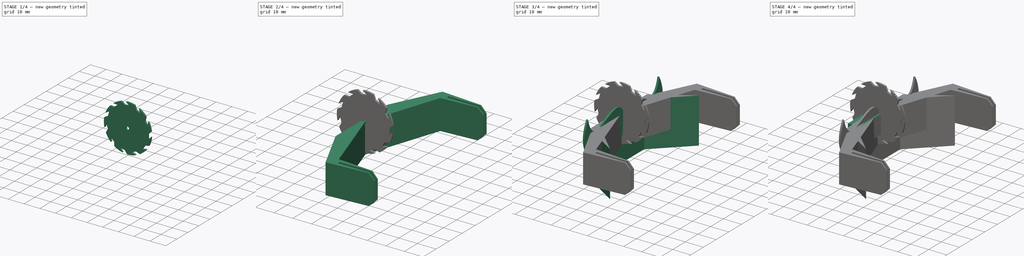
[diagram: build sequence overview — one tinted view per stage of 4, left to right]
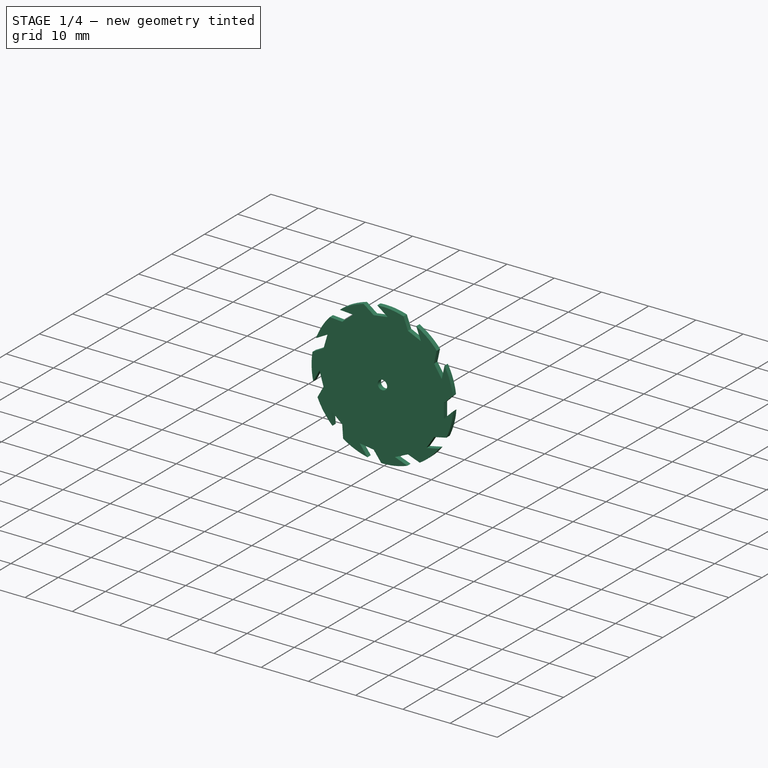
[diagram: stage 1 of 4 — iso view after this stage's code; geometry added in this stage tinted green]
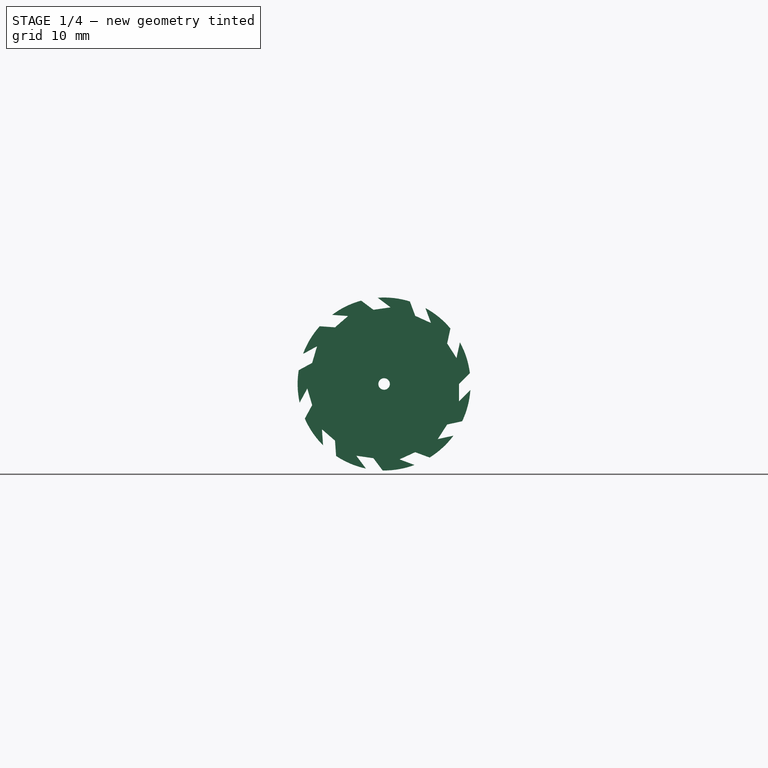
[diagram: stage 1 of 4 — front view after this stage's code; geometry added in this stage tinted green]
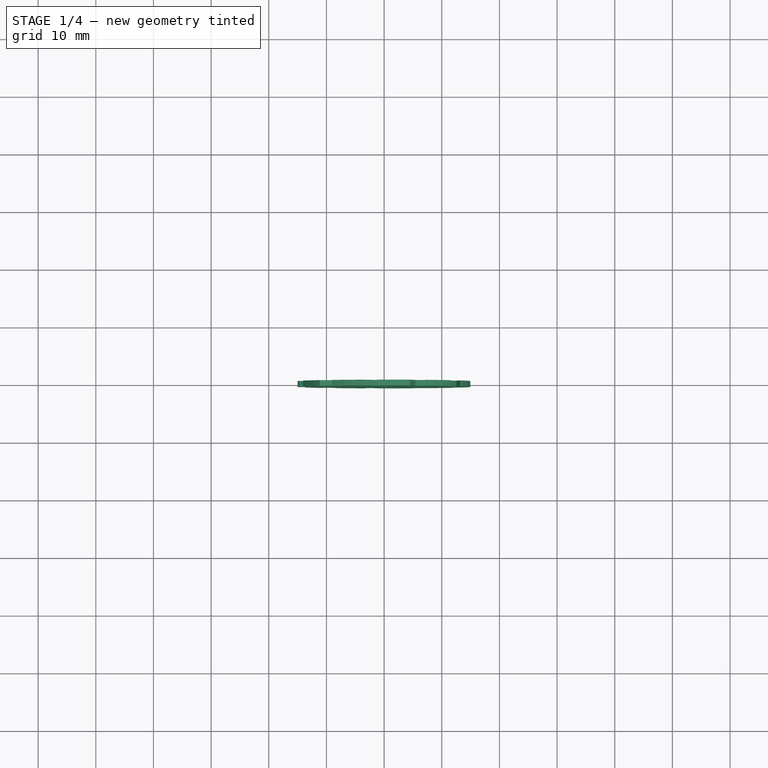
[diagram: stage 1 of 4 — top view after this stage's code; geometry added in this stage tinted green]
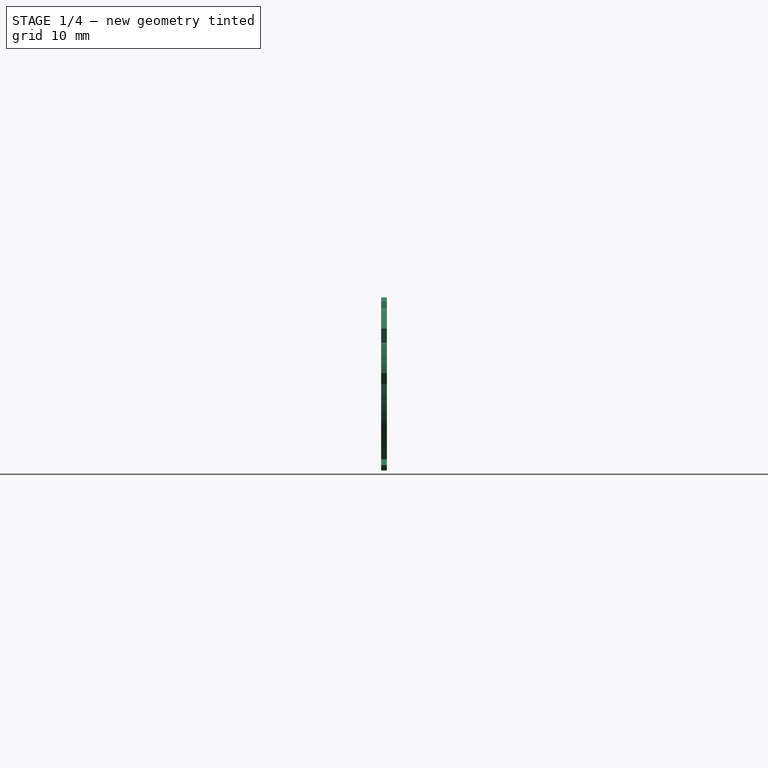
[diagram: stage 1 of 4 — right view after this stage's code; geometry added in this stage tinted green]
FCSTD DOCUMENT  (FreeCAD 0.17R13541 (Git))
Label: front_accessory_template
License: All rights reserved
LicenseURL: http://en.wikipedia.org/wiki/All_rights_reserved
objects: Sketcher::SketchObject×10, PartDesign::Pad×7, PartDesign::Body×5, PartDesign::Plane×4, PartDesign::Pocket×2, PartDesign::Mirrored×1, PartDesign::Line×1, PartDesign::Revolution×1, PartDesign::PolarPattern×1
note: 42 computed .brp shape members not serialized (recipe doc carries the construction recipe); baked Part::Feature solids carry a one-line shape summary decoded from their .brp

FEATURE [PartDesign::Body] Body003  label="plower2"
  Group = -> [Sketch005,Pad005,DatumPlane002,Sketch006,Pocket,DatumLine,DatumPlane003,Sketch007,Revolution]
  Origin = -> Origin003
  Tip = -> Revolution
FEATURE [Sketcher::SketchObject] Sketch008
  MapMode = 5
  Placement = pos=(0,0,0) rot=(1,0,0;1.5708rad)
  Support = -> [XZ_Plane004]
  sketch-geometry (2):
    g0: Circle CenterX=0 CenterY=0 CenterZ=0 NormalX=0 NormalY=0 NormalZ=1 AngleXU=0 Radius=15
    g1: Circle CenterX=0 CenterY=0 CenterZ=0 NormalX=0 NormalY=0 NormalZ=1 AngleXU=0 Radius=1
  constraints (4):
    c: Coincident(g0,g-1)
    c: Radius(g0) = 15
    c: Coincident(g1,g-1)
    c: Radius(g1) = 1
FEATURE [PartDesign::Pad] Pad006
  Length = 1
  Length2 = 100
  Midplane = true
  Placement = pos=(0,0,0) rot=(1,0,0;1.5708rad)
  Profile = -> Sketch008
  Type = 0
FEATURE [Sketcher::SketchObject] Sketch009
  MapMode = 5
  Placement = pos=(0,0.5,0) rot=(-1,0,0;1.5708rad)
  Support = -> [Pad006]
  sketch-geometry (4):
    g0: LineSegment StartX=13 StartY=3 StartZ=0 EndX=16 EndY=0 EndZ=0
    g1: LineSegment StartX=16 StartY=0 StartZ=0 EndX=16 EndY=-3 EndZ=0
    g2: LineSegment StartX=16 StartY=-3 StartZ=0 EndX=13 EndY=0 EndZ=0
    g3: LineSegment StartX=13 StartY=0 StartZ=0 EndX=13 EndY=3 EndZ=0
  constraints (12):
    c: Coincident(g0,g1)
    c: Vertical(g1)
    c: Coincident(g1,g2)
    c: PointOnObject(g2,g-1)
    c: Coincident(g2,g3)
    c: Vertical(g3)
    c: Coincident(g0,g3)
    c: Equal(g3,g1)
    c: DistanceY(g3,g3) = 3
    c: DistanceX(g-1,g2) = 13
    c: DistanceX(g2,g1) = 3
    c: PointOnObject(g0,g-1)
FEATURE [PartDesign::Pocket] Pocket001
  BaseFeature = -> Pad006
  Length = 5
  Length2 = 100
  Placement = pos=(0,0,0) rot=(1,0,0;1.5708rad)
  Profile = -> Sketch009
  Type = 0
FEATURE [PartDesign::PolarPattern] PolarPattern
  Angle = 360
  Axis = -> Sketch009 [N_Axis]
  BaseFeature = -> Pocket001
  Occurrences = 11
  Originals = -> [Pocket001]
  Placement = pos=(0,0,0) rot=(1,0,0;1.5708rad)
FEATURE [PartDesign::Body] Body004  label="plower2_blade"
  Group = -> [Sketch008,Pad006,Sketch009,Pocket001,PolarPattern]
  Origin = -> Origin004
  Placement = pos=(30,-41.75,-8) rot=(0,0,1;0rad)
  Tip = -> PolarPattern
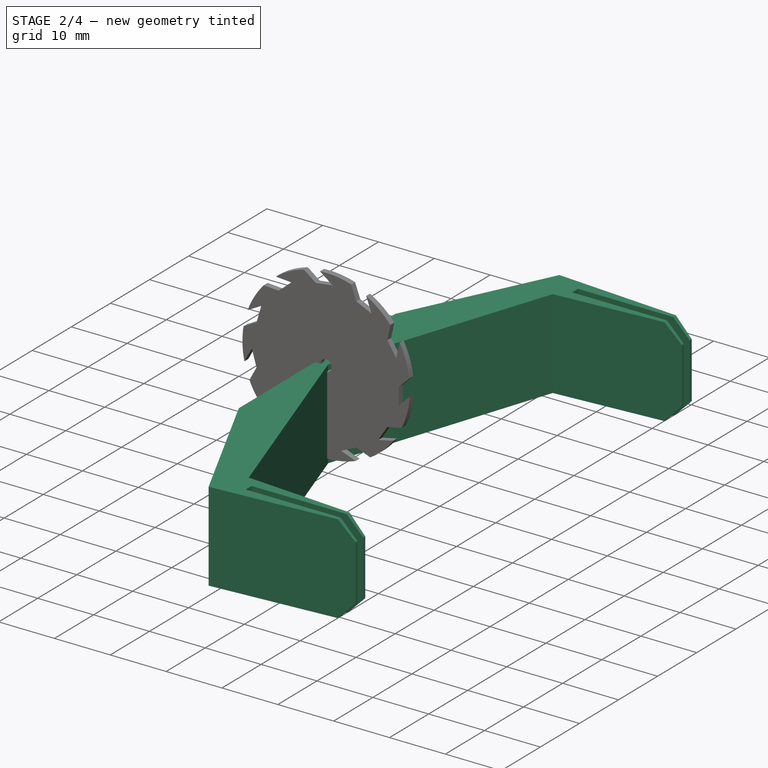
[diagram: stage 2 of 4 — iso view after this stage's code; geometry added in this stage tinted green]
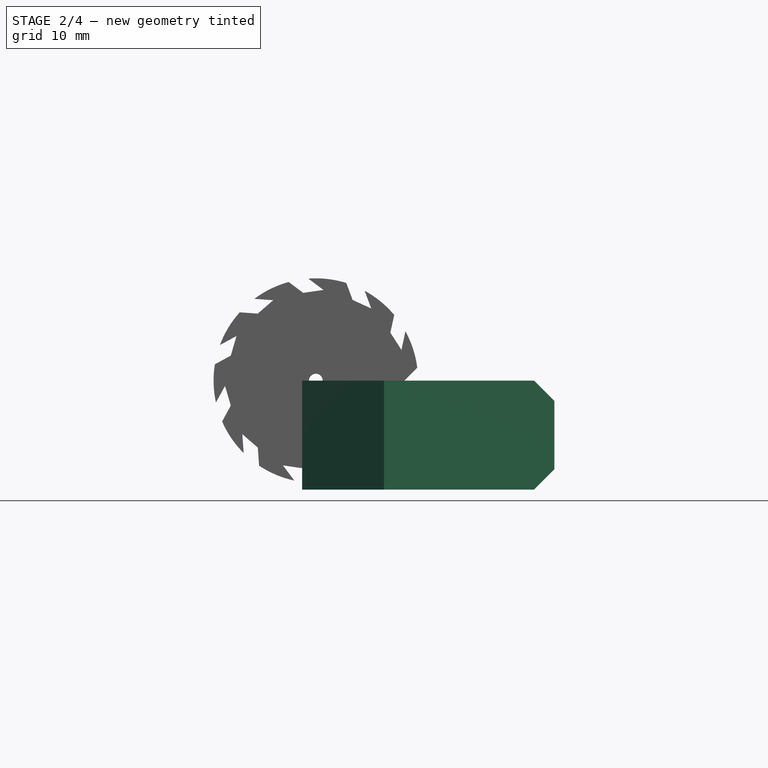
[diagram: stage 2 of 4 — front view after this stage's code; geometry added in this stage tinted green]
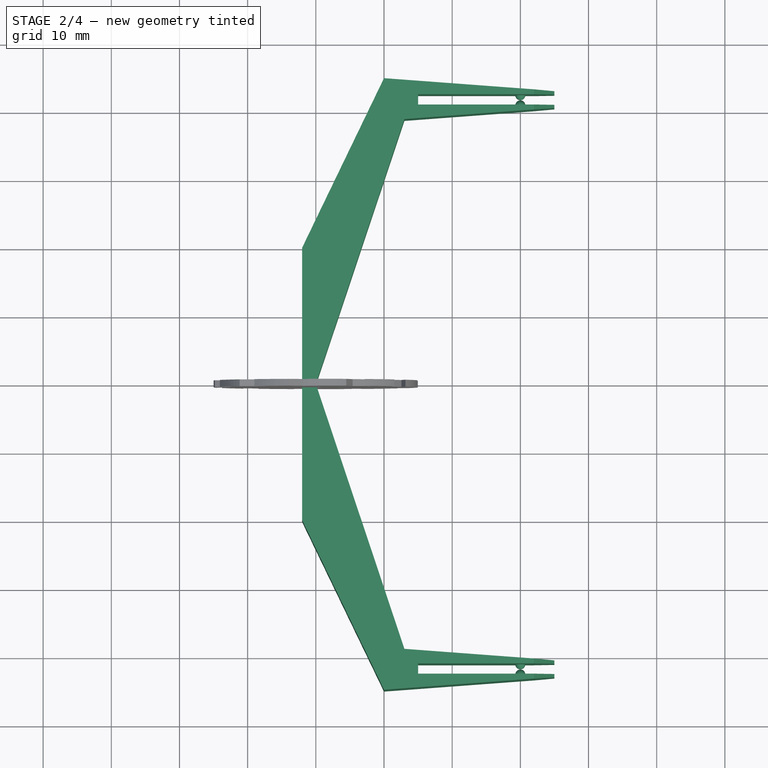
[diagram: stage 2 of 4 — top view after this stage's code; geometry added in this stage tinted green]
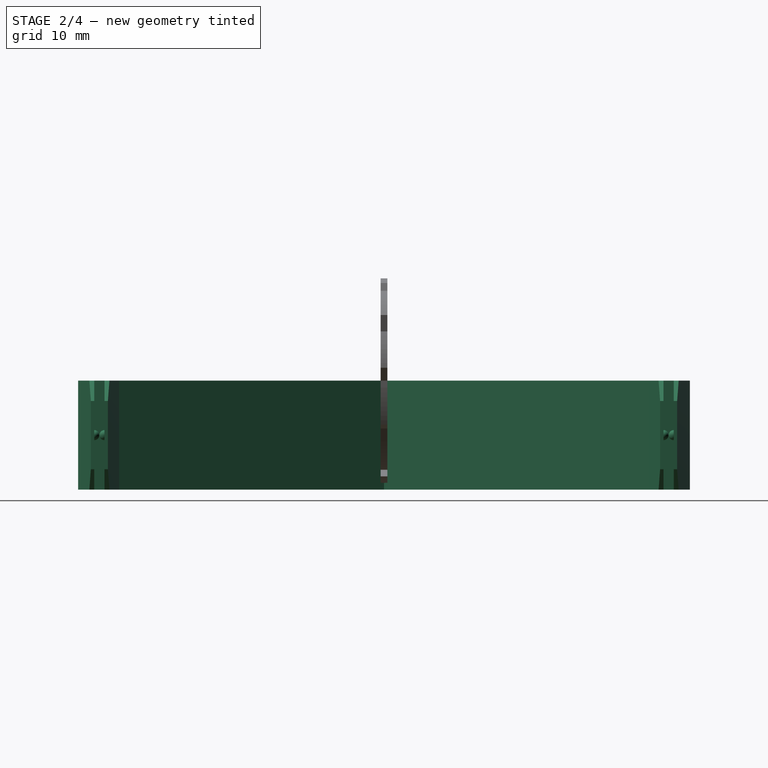
[diagram: stage 2 of 4 — right view after this stage's code; geometry added in this stage tinted green]
FEATURE [PartDesign::Body] Body002  label="plower"
  Group = -> [Sketch004,Pad004]
  Origin = -> Origin002
  Tip = -> Pad004
FEATURE [Sketcher::SketchObject] Sketch005
  MapMode = 5
  Support = -> [XY_Plane003]
  sketch-geometry (22):
    g0: LineSegment StartX=-2 StartY=20 StartZ=0 EndX=-2 EndY=-20 EndZ=0
    g1: LineSegment StartX=-2 StartY=-20 StartZ=0 EndX=10 EndY=-44.8617 EndZ=0
    g2: LineSegment StartX=10 StartY=-44.8617 StartZ=0 EndX=35 EndY=-43 EndZ=0
    g3: LineSegment StartX=35 StartY=-43 StartZ=0 EndX=35 EndY=-42.5 EndZ=0
    g4: LineSegment StartX=35 StartY=-42.5 StartZ=0 EndX=15 EndY=-42.5 EndZ=0
    g5: LineSegment StartX=15 StartY=-42.5 StartZ=0 EndX=15 EndY=-41 EndZ=0
    g6: LineSegment StartX=15 StartY=-41 StartZ=0 EndX=35 EndY=-41 EndZ=0
    g7: LineSegment StartX=35 StartY=-41 StartZ=0 EndX=35 EndY=-40.5 EndZ=0
    g8: LineSegment StartX=35 StartY=-40.5 StartZ=0 EndX=13 EndY=-38.8617 EndZ=0
    g9: LineSegment StartX=13 StartY=-38.8617 StartZ=0 EndX=0 EndY=0 EndZ=0
    g10: LineSegment StartX=0 StartY=0 StartZ=0 EndX=13 EndY=38.8617 EndZ=0
    g11: LineSegment StartX=13 StartY=38.8617 StartZ=0 EndX=35 EndY=40.5 EndZ=0
    g12: LineSegment StartX=35 StartY=40.5 StartZ=0 EndX=35 EndY=41 EndZ=0
    g13: LineSegment StartX=35 StartY=41 StartZ=0 EndX=15 EndY=41 EndZ=0
    g14: LineSegment StartX=15 StartY=41 StartZ=0 EndX=15 EndY=42.5 EndZ=0
    g15: LineSegment StartX=15 StartY=42.5 StartZ=0 EndX=35 EndY=42.5 EndZ=0
    g16: LineSegment StartX=35 StartY=42.5 StartZ=0 EndX=35 EndY=43 EndZ=0
    g17: LineSegment StartX=35 StartY=43 StartZ=0 EndX=10 EndY=44.8617 EndZ=0
    g18: LineSegment StartX=10 StartY=44.8617 StartZ=0 EndX=-2 EndY=20 EndZ=0
    g19: LineSegment [constr] StartX=35 StartY=43 StartZ=0 EndX=35 EndY=-43 EndZ=0
    g20: LineSegment [constr] StartX=35 StartY=-41.75 StartZ=0 EndX=8.49807 EndY=-41.75 EndZ=0
    g21: GeomPoint X=13 Y=-44.6383 Z=0
  constraints (61):
    c: Vertical(g0)
    c: Coincident(g0,g1)
    c: Coincident(g1,g2)
    c: Coincident(g2,g3)
    c: Vertical(g3)
    c: Coincident(g3,g4)
    c: Horizontal(g4)
    c: Coincident(g4,g5)
    c: Vertical(g5)
    c: Coincident(g5,g6)
    c: Horizontal(g6)
    c: Coincident(g6,g7)
    c: Vertical(g7)
    c: Coincident(g7,g8)
    c: Coincident(g8,g9)
    c: Coincident(g9,g-1)
    c: Coincident(g9,g10)
    c: Coincident(g10,g11)
    c: Coincident(g11,g12)
    c: Vertical(g12)
    c: Coincident(g12,g13)
    c: Horizontal(g13)
    c: Coincident(g13,g14)
    c: Vertical(g14)
    c: Coincident(g14,g15)
    c: Horizontal(g15)
    c: Coincident(g15,g16)
    c: Vertical(g16)
    c: Coincident(g16,g17)
    c: Coincident(g17,g18)
    c: Coincident(g18,g0)
    c: Coincident(g19,g16)
    c: Coincident(g19,g2)
    c: Vertical(g19)
    c: PointOnObject(g7,g19)
    c: PointOnObject(g11,g19)
    c: Equal(g12,g16)
    c: Equal(g16,g7)
    c: Equal(g7,g3)
    c: Equal(g5,g14)
    c: Equal(g13,g6)
    c: Symmetric(g10,g8,g-1)
    c: Symmetric(g1,g17,g-1)
    c: Symmetric(g0,g0,g-1)
    c: DistanceY(g6,g12) = 82
    c: Symmetric(g7,g11,g-1)
    c: DistanceY(g3,g6) = 1.5
    c: DistanceY(g3,g3) = 0.5
    c: DistanceX(g1,g8) = 3
    c: DistanceY(g1,g8) = 6
    c: DistanceY(g0,g0) = 40
    c: PointOnObject(g20,g19)
    c: PointOnObject(g20,g1)
    c: Horizontal(g20)
    c: PointOnObject(g21,g2)
    c: Symmetric(g21,g8,g20)
    c: DistanceX(g-1,g2) = 35
    c: DistanceX(g0,g17) = 12
    c: DistanceX(g0,g-1) = 2
    c: Symmetric(g4,g5,g20)
    c: DistanceX(g4,g4) = 20
FEATURE [PartDesign::Pad] Pad005
  Length = 16
  Length2 = 100
  Profile = -> Sketch005
  Reversed = true
  Type = 0
FEATURE [PartDesign::Plane] DatumPlane002
  AttachmentOffset = pos=(0,0,50) rot=(0,0,1;0rad)
  MapMode = 5
  Placement = pos=(0,-50,-5e-12) rot=(1,0,0;1.5708rad)
  Support = -> [XZ_Plane003]
FEATURE [Sketcher::SketchObject] Sketch006
  MapMode = 5
  Placement = pos=(0,-50,-5e-12) rot=(1,0,0;1.5708rad)
  Support = -> [DatumPlane002]
  sketch-geometry (5):
    g0: LineSegment StartX=0 StartY=-48.0005 StartZ=0 EndX=40 EndY=-8 EndZ=0
    g1: LineSegment StartX=40 StartY=-8 StartZ=0 EndX=0 EndY=31.9995 EndZ=0
    g2: LineSegment StartX=0 StartY=31.9995 StartZ=0 EndX=80 EndY=31.9995 EndZ=0
    g3: LineSegment StartX=80 StartY=31.9995 StartZ=0 EndX=80 EndY=-48.0005 EndZ=0
    g4: LineSegment StartX=80 StartY=-48.0005 StartZ=0 EndX=0 EndY=-48.0005 EndZ=0
  constraints (15):
    c: Coincident(g0,g1)
    c: Coincident(g1,g2)
    c: Horizontal(g2)
    c: Coincident(g2,g3)
    c: Vertical(g3)
    c: Coincident(g3,g4)
    c: Coincident(g4,g0)
    c: Horizontal(g4)
    c: Perpendicular(g0,g1)
    c: DistanceY(g0,g-1) = 8
    c: DistanceX(g-1,g0) = 40
    c: PointOnObject(g0,g-2)
    c: PointOnObject(g1,g-2)
    c: Equal(g4,g3)
    c: DistanceY(g3,g3) = 80
FEATURE [PartDesign::Pocket] Pocket
  BaseFeature = -> Pad005
  Length = 5
  Length2 = 100
  Profile = -> Sketch006
  Type = 1
FEATURE [PartDesign::Line] DatumLine
  AttacherType = Attacher::AttachEngineLine
  AttachmentOffset = pos=(-8,30,0) rot=(0,0,1;0rad)
  MapMode = 16
  Placement = pos=(30,-4e-12,-8) rot=(0.57735,0.57735,0.57735;4.18879rad)
  Support = -> [Y_Axis003]
FEATURE [PartDesign::Plane] DatumPlane003
  AttachmentOffset = pos=(0,0,-8) rot=(0,0,1;0rad)
  MapMode = 5
  Placement = pos=(0,0,-8) rot=(0,0,1;0rad)
  Support = -> [XY_Plane003]
FEATURE [Sketcher::SketchObject] Sketch007
  MapMode = 5
  Placement = pos=(0,0,-8) rot=(0,0,1;0rad)
  Support = -> [DatumPlane003]
  sketch-geometry (13):
    g0: LineSegment [constr] StartX=30 StartY=42.5 StartZ=0 EndX=30 EndY=-42.5 EndZ=0
    g1: ArcOfCircle CenterX=30 CenterY=42.5 CenterZ=0 NormalX=0 NormalY=0 NormalZ=1 AngleXU=0 Radius=0.74 StartAngle=4.71239 EndAngle=6.28319
    g2: ArcOfCircle CenterX=30 CenterY=41 CenterZ=0 NormalX=0 NormalY=0 NormalZ=1 AngleXU=0 Radius=0.74 StartAngle=0 EndAngle=1.5708
    g3: LineSegment StartX=30 StartY=41 StartZ=0 EndX=30.74 EndY=41 EndZ=0
    g4: LineSegment StartX=30 StartY=42.5 StartZ=0 EndX=30.74 EndY=42.5 EndZ=0
    g5: LineSegment StartX=30 StartY=-41 StartZ=0 EndX=30.74 EndY=-41 EndZ=0
    g6: LineSegment StartX=30 StartY=-42.5 StartZ=0 EndX=30.74 EndY=-42.5 EndZ=0
    g7: LineSegment StartX=30 StartY=42.5 StartZ=0 EndX=30 EndY=41.76 EndZ=0
    g8: LineSegment StartX=30 StartY=41.74 StartZ=0 EndX=30 EndY=41 EndZ=0
    g9: ArcOfCircle CenterX=30 CenterY=-41 CenterZ=0 NormalX=0 NormalY=0 NormalZ=1 AngleXU=0 Radius=0.74 StartAngle=4.71239 EndAngle=6.28319
    g10: ArcOfCircle CenterX=30 CenterY=-42.5 CenterZ=0 NormalX=0 NormalY=0 NormalZ=1 AngleXU=0 Radius=0.74 StartAngle=0 EndAngle=1.5708
    g11: LineSegment StartX=30 StartY=-41.76 StartZ=0 EndX=30 EndY=-42.5 EndZ=0
    g12: LineSegment StartX=30 StartY=-41.74 StartZ=0 EndX=30 EndY=-41 EndZ=0
  constraints (37):
    c: Coincident(g3,g2)
    c: Horizontal(g3)
    c: Coincident(g4,g1)
    c: Horizontal(g4)
    c: Horizontal(g5)
    c: Horizontal(g6)
    c: Radius(g1) = 0.74
    c: Symmetric(g0,g0,g-1)
    c: Coincident(g0,g1)
    c: PointOnObject(g2,g0)
    c: DistanceY(g0,g0) = 85
    c: Coincident(g4,g0)
    c: Coincident(g3,g2)
    c: DistanceX(g-1,g0) = 30
    c: PointOnObject(g2,g0)
    c: PointOnObject(g1,g0)
    c: DistanceY(g2,g1) = 0.02
    c: Coincident(g7,g0)
    c: Coincident(g7,g1)
    c: Coincident(g8,g2)
    c: Coincident(g8,g2)
    c: Coincident(g6,g0)
    c: Symmetric(g5,g2,g-1)
    c: DistanceY(g5,g2) = 82
    c: Coincident(g9,g5)
    c: Coincident(g9,g5)
    c: PointOnObject(g9,g0)
    c: Coincident(g10,g0)
    c: Coincident(g10,g6)
    c: PointOnObject(g10,g0)
    c: Coincident(g11,g10)
    c: Coincident(g11,g0)
    c: Coincident(g12,g9)
    c: Coincident(g12,g5)
    c: Equal(g9,g10)
    c: Equal(g10,g2)
    c: Equal(g2,g1)
FEATURE [PartDesign::Revolution] Revolution
  Angle = 360
  Axis = (0,1,0)
  Base = (30,-4e-12,-8)
  BaseFeature = -> Pocket
  Profile = -> Sketch007
  ReferenceAxis = -> DatumLine
  Reversed = true
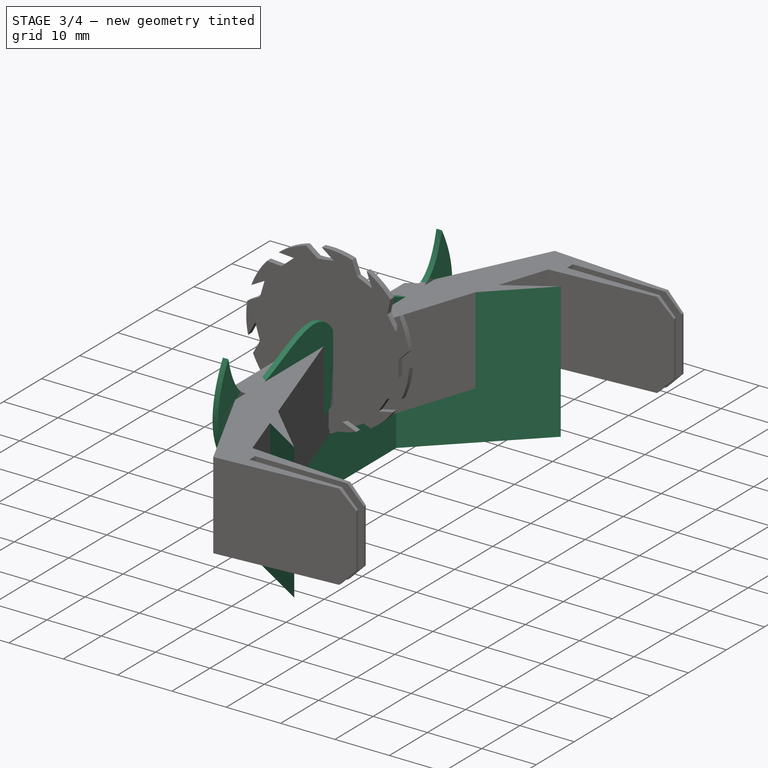
[diagram: stage 3 of 4 — iso view after this stage's code; geometry added in this stage tinted green]
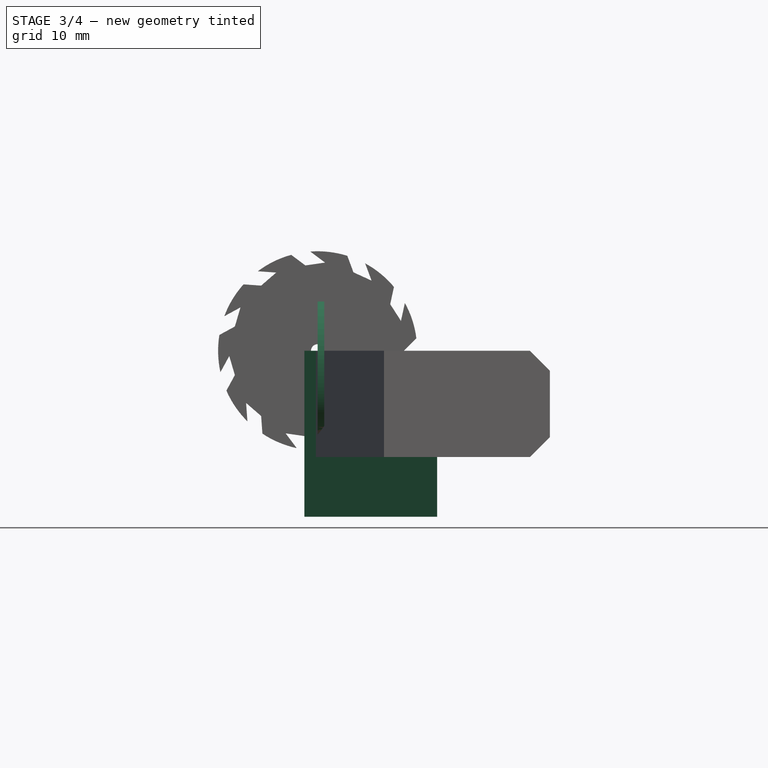
[diagram: stage 3 of 4 — front view after this stage's code; geometry added in this stage tinted green]
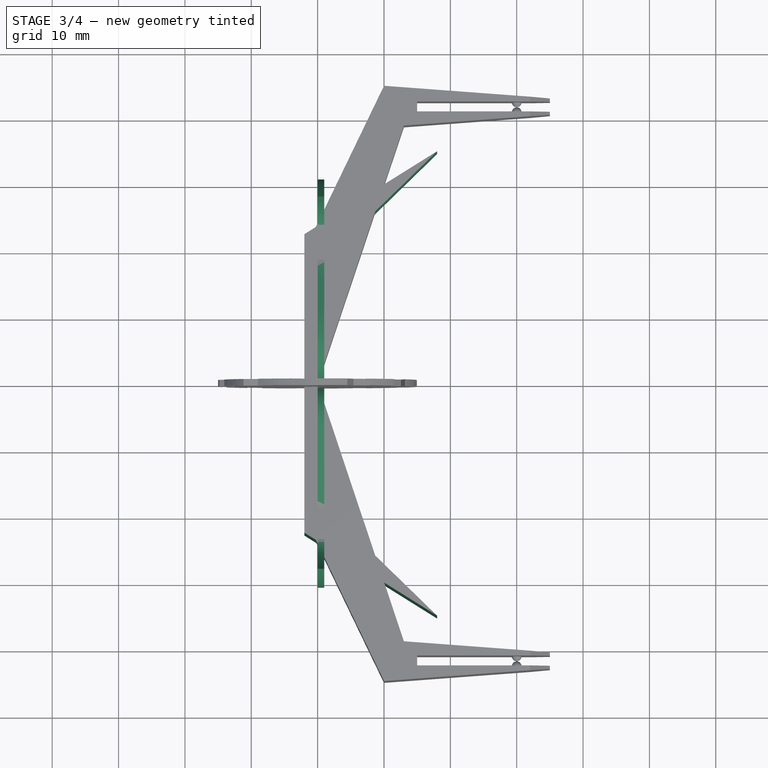
[diagram: stage 3 of 4 — top view after this stage's code; geometry added in this stage tinted green]
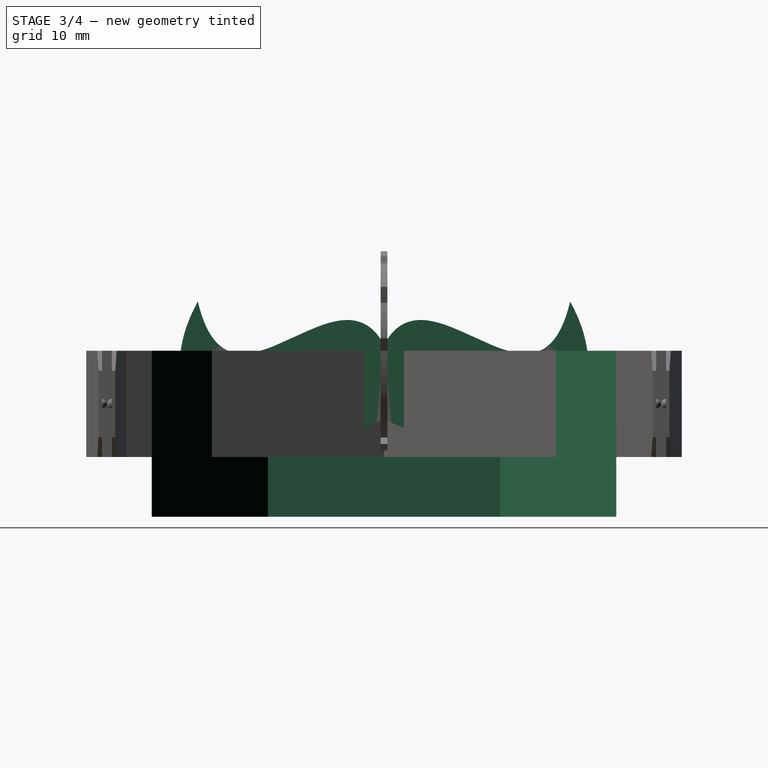
[diagram: stage 3 of 4 — right view after this stage's code; geometry added in this stage tinted green]
FEATURE [PartDesign::Body] Body  label="template"
  Group = -> [Sketch,Sketch001,Pad,DatumPlane,Pad001,DatumPlane001,Sketch002,Pad002]
  Origin = -> Origin
  Placement = pos=(-2,0,0) rot=(0,0,1;0rad)
  Tip = -> Pad002
FEATURE [Sketcher::SketchObject] Sketch003
  MapMode = 5
  Placement = pos=(0,0,0) rot=(0.57735,0.57735,0.57735;2.0944rad)
  Support = -> [YZ_Plane001]
  sketch-geometry (19):
    g0: LineSegment [constr] StartX=-33 StartY=9.1021 StartZ=0 EndX=33 EndY=9.1021 EndZ=0
    g1: LineSegment [constr] StartX=33 StartY=9.1021 StartZ=0 EndX=33 EndY=-17.1228 EndZ=0
    g2: LineSegment [constr] StartX=33 StartY=-17.1228 StartZ=0 EndX=-33 EndY=-17.1228 EndZ=0
    g3: LineSegment [constr] StartX=-33 StartY=-17.1228 StartZ=0 EndX=-33 EndY=9.1021 EndZ=0
    g4-g7: Circle [constr] x4 (B-spline internal-alignment scaffolding for g8; pole/knot coordinates omitted)
    g8: BSplineCurve PolesCount=4 KnotsCount=2 Degree=3 IsPeriodic=0
    g9: GeomPoint [constr] X=-28.0558 Y=7.43431 Z=0
    g10: GeomPoint [constr] X=0 Y=0.895992 Z=0
    g11-g14: Circle [constr] x4 (B-spline internal-alignment scaffolding for g15; pole/knot coordinates omitted)
    g15: BSplineCurve PolesCount=4 KnotsCount=2 Degree=3 IsPeriodic=0
    g16: GeomPoint [constr] X=-20.3249 Y=7.68028 Z=0
    g17: GeomPoint [constr] X=0 Y=-10.2532 Z=0
    g18: LineSegment StartX=0 StartY=0.895992 StartZ=0 EndX=0 EndY=-10.2532 EndZ=0
  constraints (28):
    c: Coincident(g0,g1)
    c: Coincident(g1,g2)
    c: Coincident(g2,g3)
    c: Coincident(g3,g0)
    c: Horizontal(g0)
    c: Horizontal(g2)
    c: Vertical(g1)
    c: Vertical(g3)
    c: Symmetric(g0,g0,g-2)
    c: DistanceX(g0,g0) = 66
    c: Radius(g4) = 1
    c: Equal(g4,g5)
    c: Equal(g4,g6)
    c: Equal(g4,g7)
    c: PointOnObject(g7,g-2)
    c: InternalAlignment(g4-g7 -> g8) x4
    c: InternalAlignment(g9,g8)
    c: InternalAlignment(g10,g8)
    c: Coincident(g11,g4)
    c: Radius(g11) = 2
    c: Equal(g11,g12)
    c: Equal(g11,g13)
    c: Equal(g11,g14)
    c: PointOnObject(g14,g-2)
    c: InternalAlignment(g11-g14 -> g15) x4
    c: InternalAlignment(g17,g15)
    c: Coincident(g18,g7)
    c: Coincident(g18,g14)
FEATURE [PartDesign::Pad] Pad003
  Length = 1
  Length2 = 100
  Placement = pos=(0,0,0) rot=(0.57735,0.57735,0.57735;2.0944rad)
  Profile = -> Sketch003
  Type = 0
FEATURE [PartDesign::Mirrored] Mirrored
  BaseFeature = -> Pad003
  MirrorPlane = -> XZ_Plane001
  Originals = -> [Pad003]
  Placement = pos=(0,0,0) rot=(0.57735,0.57735,0.57735;2.0944rad)
FEATURE [PartDesign::Body] Body001  label="mustache"
  Group = -> [Sketch003,Pad003,Mirrored]
  Origin = -> Origin001
  Tip = -> Mirrored
FEATURE [Sketcher::SketchObject] Sketch004
  MapMode = 5
  Support = -> [XY_Plane002]
  sketch-geometry (6):
    g0: LineSegment StartX=-2 StartY=22.5 StartZ=0 EndX=18 EndY=35 EndZ=0
    g1: LineSegment StartX=18 StartY=35 StartZ=0 EndX=0 EndY=17.5 EndZ=0
    g2: LineSegment StartX=0 StartY=17.5 StartZ=0 EndX=0 EndY=-17.5 EndZ=0
    g3: LineSegment StartX=0 StartY=-17.5 StartZ=0 EndX=18 EndY=-35 EndZ=0
    g4: LineSegment StartX=18 StartY=-35 StartZ=0 EndX=-2 EndY=-22.5 EndZ=0
    g5: LineSegment StartX=-2 StartY=22.5 StartZ=0 EndX=-2 EndY=-22.5 EndZ=0
  constraints (17):
    c: Coincident(g0,g1)
    c: Coincident(g1,g2)
    c: Vertical(g2)
    c: Coincident(g2,g3)
    c: Coincident(g3,g4)
    c: Coincident(g5,g0)
    c: Coincident(g5,g4)
    c: Vertical(g5)
    c: DistanceX(g4,g-1) = 2
    c: PointOnObject(g-1,g2)
    c: Symmetric(g2,g1,g-1)
    c: Symmetric(g0,g4,g-1)
    c: Symmetric(g3,g0,g-1)
    c: DistanceY(g5,g5) = 45
    c: DistanceY(g2,g1) = 35
    c: DistanceY(g3,g0) = 70
    c: DistanceX(g0,g0) = 20
FEATURE [PartDesign::Pad] Pad004
  Length = 25
  Length2 = 100
  Profile = -> Sketch004
  Reversed = true
  Type = 0
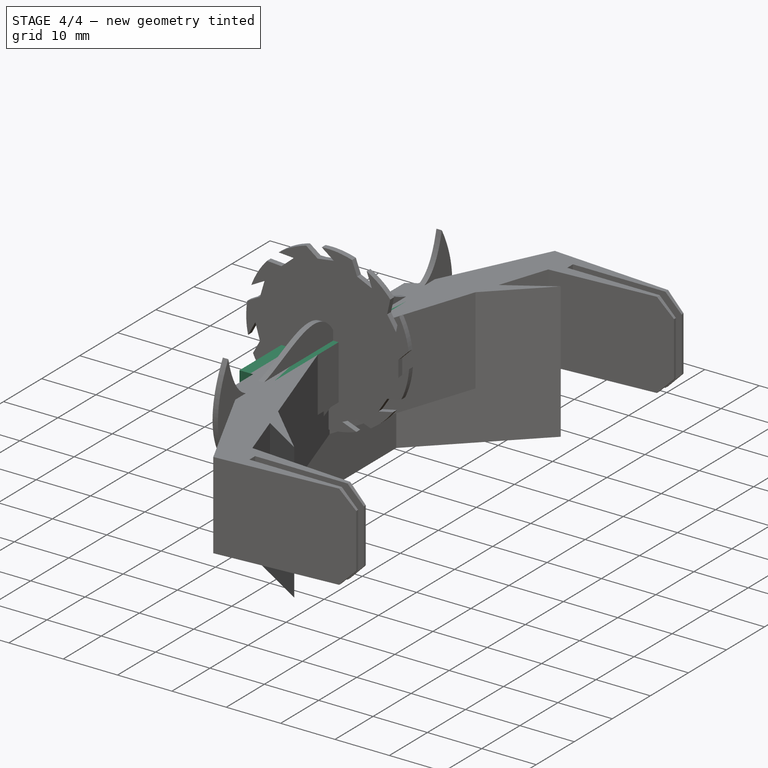
[diagram: stage 4 of 4 — iso view after this stage's code; geometry added in this stage tinted green]
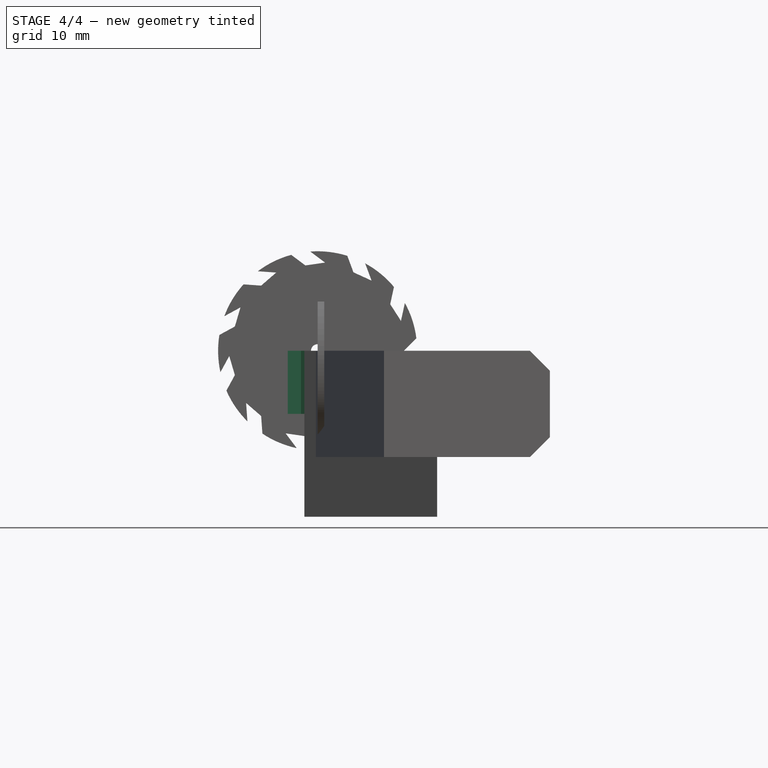
[diagram: stage 4 of 4 — front view after this stage's code; geometry added in this stage tinted green]
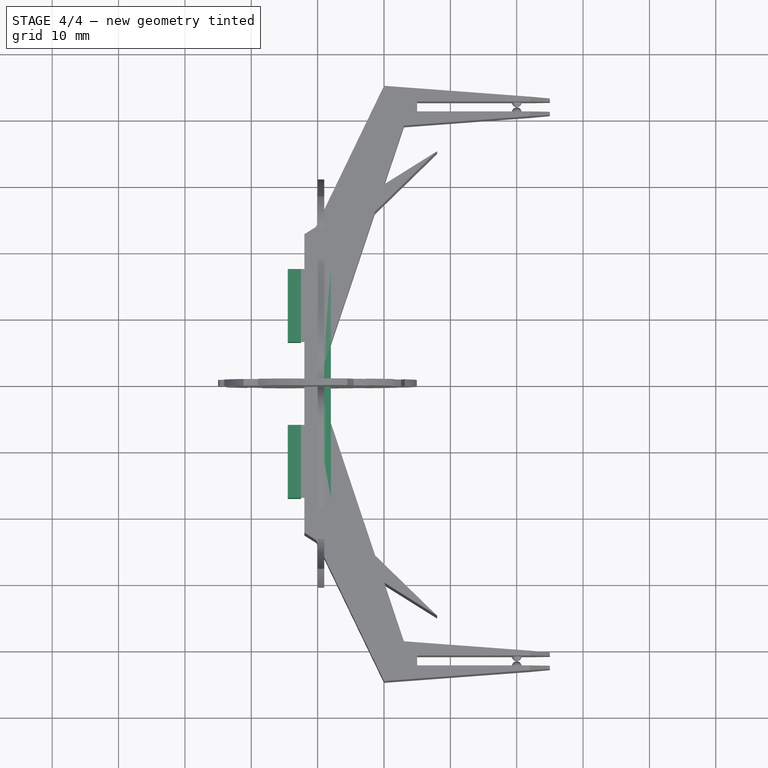
[diagram: stage 4 of 4 — top view after this stage's code; geometry added in this stage tinted green]
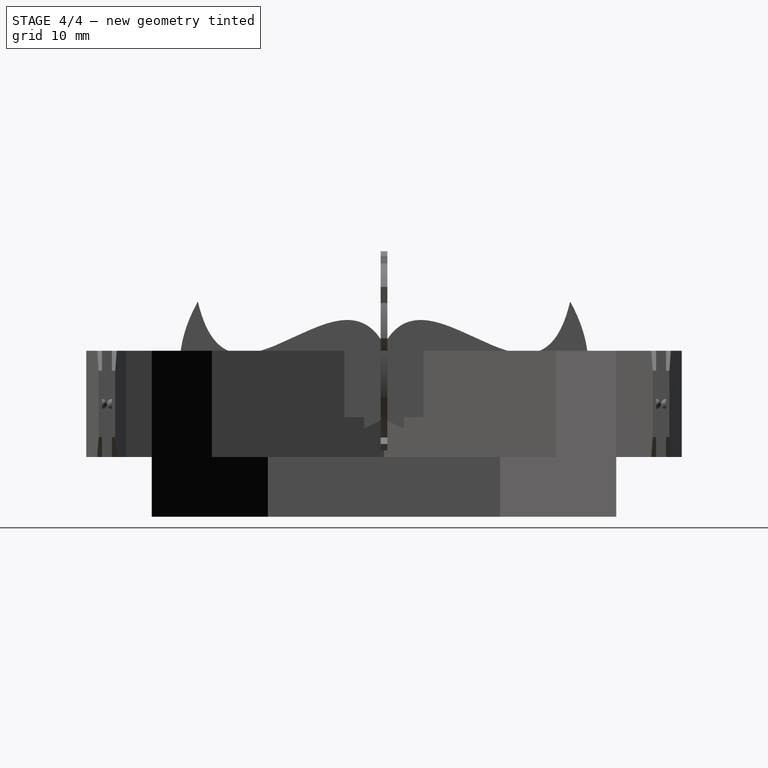
[diagram: stage 4 of 4 — right view after this stage's code; geometry added in this stage tinted green]
FEATURE [Sketcher::SketchObject] Sketch001
  MapMode = 5
  Placement = pos=(0,0,0) rot=(0.57735,0.57735,0.57735;2.0944rad)
  Support = -> [YZ_Plane]
  sketch-geometry (4):
    g0: LineSegment StartX=-17.25 StartY=0 StartZ=0 EndX=17.25 EndY=0 EndZ=0
    g1: LineSegment StartX=17.25 StartY=0 StartZ=0 EndX=17.25 EndY=-10 EndZ=0
    g2: LineSegment StartX=17.25 StartY=-10 StartZ=0 EndX=-17.25 EndY=-10 EndZ=0
    g3: LineSegment StartX=-17.25 StartY=-10 StartZ=0 EndX=-17.25 EndY=0 EndZ=0
  constraints (12):
    c: Coincident(g0,g1)
    c: Coincident(g1,g2)
    c: Coincident(g2,g3)
    c: Coincident(g3,g0)
    c: Horizontal(g0)
    c: Horizontal(g2)
    c: Vertical(g1)
    c: Vertical(g3)
    c: PointOnObject(g0,g-1)
    c: Symmetric(g0,g0,g-2)
    c: DistanceX(g0,g0) = 34.5
    c: DistanceY(g1,g1) = 10
FEATURE [PartDesign::Pad] Pad
  Length = 2
  Length2 = 100
  Placement = pos=(0,0,0) rot=(0.57735,0.57735,0.57735;2.0944rad)
  Profile = -> Sketch001
  Type = 0
FEATURE [PartDesign::Plane] DatumPlane
  MapMode = 5
  Placement = pos=(0,0,0) rot=(0.57735,0.57735,-0.57735;4.18879rad)
  Support = -> [Pad]
FEATURE [Sketcher::SketchObject] Sketch
  MapMode = 5
  Placement = pos=(0,0,0) rot=(0.57735,0.57735,-0.57735;4.18879rad)
  Support = -> [DatumPlane]
  sketch-geometry (6):
    g0: LineSegment StartX=-17.25 StartY=0 StartZ=0 EndX=-13.5 EndY=9.5 EndZ=0
    g1: LineSegment StartX=-13.5 StartY=9.5 StartZ=0 EndX=-6.25 EndY=0 EndZ=0
    g2: LineSegment StartX=-6.25 StartY=0 StartZ=0 EndX=-17.25 EndY=0 EndZ=0
    g3: LineSegment StartX=6.25 StartY=0 StartZ=0 EndX=17.25 EndY=0 EndZ=0
    g4: LineSegment StartX=17.25 StartY=0 StartZ=0 EndX=13.5 EndY=9.5 EndZ=0
    g5: LineSegment StartX=13.5 StartY=9.5 StartZ=0 EndX=6.25 EndY=0 EndZ=0
  constraints (16):
    c: Coincident(g0,g1)
    c: Coincident(g1,g2)
    c: Coincident(g2,g0)
    c: Horizontal(g2)
    c: Horizontal(g3)
    c: Coincident(g3,g4)
    c: Coincident(g4,g5)
    c: Coincident(g5,g3)
    c: Symmetric(g1,g3,g-2)
    c: Symmetric(g0,g3,g-2)
    c: Symmetric(g0,g4,g-2)
    c: DistanceX(g1,g3) = 12.5
    c: DistanceX(g0,g3) = 34.5
    c: DistanceX(g0,g4) = 27
    c: PointOnObject(g3,g-1)
    c: DistanceY(g3,g4) = 9.5
FEATURE [PartDesign::Pad] Pad001
  BaseFeature = -> Pad
  Length = 2.5
  Length2 = 100
  Placement = pos=(0,0,0) rot=(0.57735,0.57735,0.57735;2.0944rad)
  Profile = -> Sketch
  Type = 0
FEATURE [PartDesign::Plane] DatumPlane001
  MapMode = 5
  Placement = pos=(-2.5,0,0) rot=(0.57735,0.57735,-0.57735;4.18879rad)
  Support = -> [Pad001]
FEATURE [Sketcher::SketchObject] Sketch002
  MapMode = 5
  Placement = pos=(-2.5,0,0) rot=(0.57735,0.57735,-0.57735;4.18879rad)
  Support = -> [DatumPlane001]
  sketch-geometry (8):
    g0: LineSegment StartX=-17.25 StartY=9.5 StartZ=0 EndX=-6.25 EndY=9.5 EndZ=0
    g1: LineSegment StartX=-6.25 StartY=9.5 StartZ=0 EndX=-6.25 EndY=0 EndZ=0
    g2: LineSegment StartX=-6.25 StartY=0 StartZ=0 EndX=-17.25 EndY=0 EndZ=0
    g3: LineSegment StartX=-17.25 StartY=0 StartZ=0 EndX=-17.25 EndY=9.5 EndZ=0
    g4: LineSegment StartX=6.25 StartY=9.5 StartZ=0 EndX=17.25 EndY=9.5 EndZ=0
    g5: LineSegment StartX=17.25 StartY=9.5 StartZ=0 EndX=17.25 EndY=0 EndZ=0
    g6: LineSegment StartX=17.25 StartY=0 StartZ=0 EndX=6.25 EndY=0 EndZ=0
    g7: LineSegment StartX=6.25 StartY=0 StartZ=0 EndX=6.25 EndY=9.5 EndZ=0
  constraints (23):
    c: Coincident(g0,g1)
    c: Coincident(g1,g2)
    c: Coincident(g2,g3)
    c: Coincident(g3,g0)
    c: Horizontal(g0)
    c: Horizontal(g2)
    c: Vertical(g1)
    c: Vertical(g3)
    c: PointOnObject(g1,g-1)
    c: Coincident(g4,g5)
    c: Coincident(g5,g6)
    c: Coincident(g6,g7)
    c: Coincident(g7,g4)
    c: Horizontal(g4)
    c: Horizontal(g6)
    c: Vertical(g5)
    c: Vertical(g7)
    c: PointOnObject(g5,g-1)
    c: Symmetric(g6,g1,g-2)
    c: Symmetric(g0,g4,g-2)
    c: DistanceX(g0,g4) = 34.5
    c: DistanceX(g0,g4) = 12.5
    c: DistanceY(g5,g5) = 9.5
FEATURE [PartDesign::Pad] Pad002
  BaseFeature = -> Pad001
  Length = 2
  Length2 = 100
  Placement = pos=(0,0,0) rot=(0.57735,0.57735,0.57735;2.0944rad)
  Profile = -> Sketch002
  Type = 0
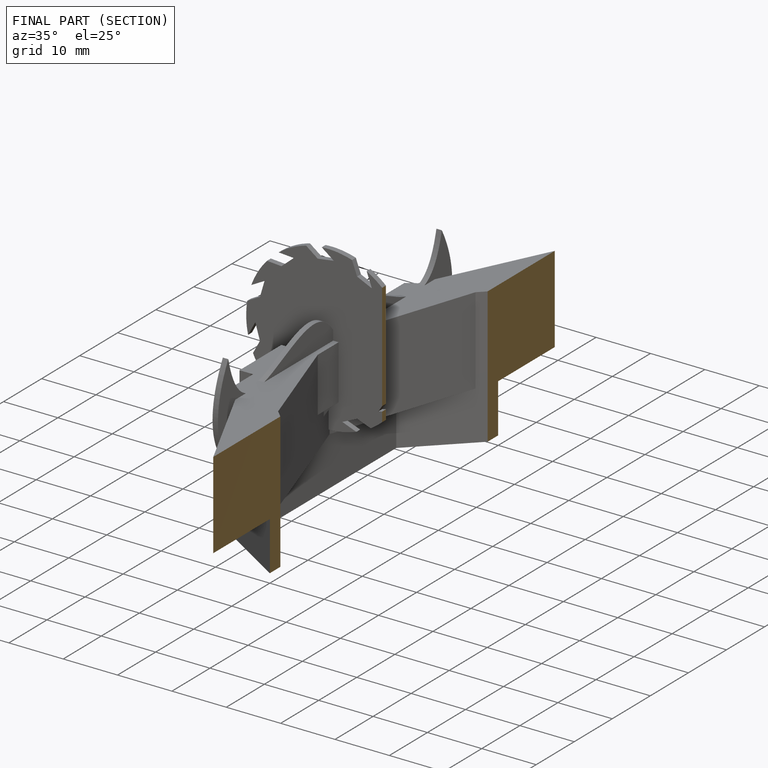
[diagram: finished part — half-section view (interior)]
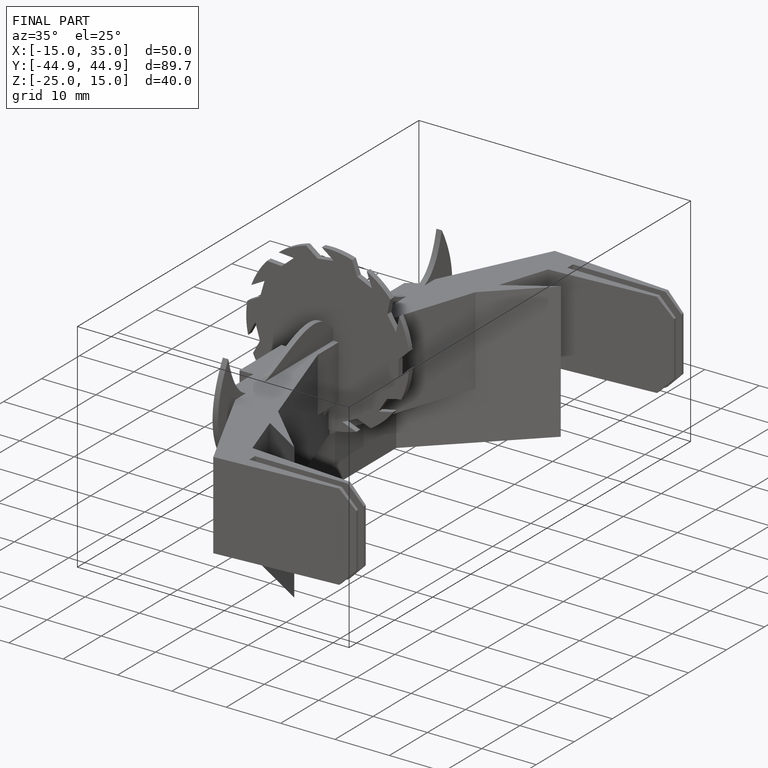
[diagram: finished part — iso view with bounding-box wireframe]
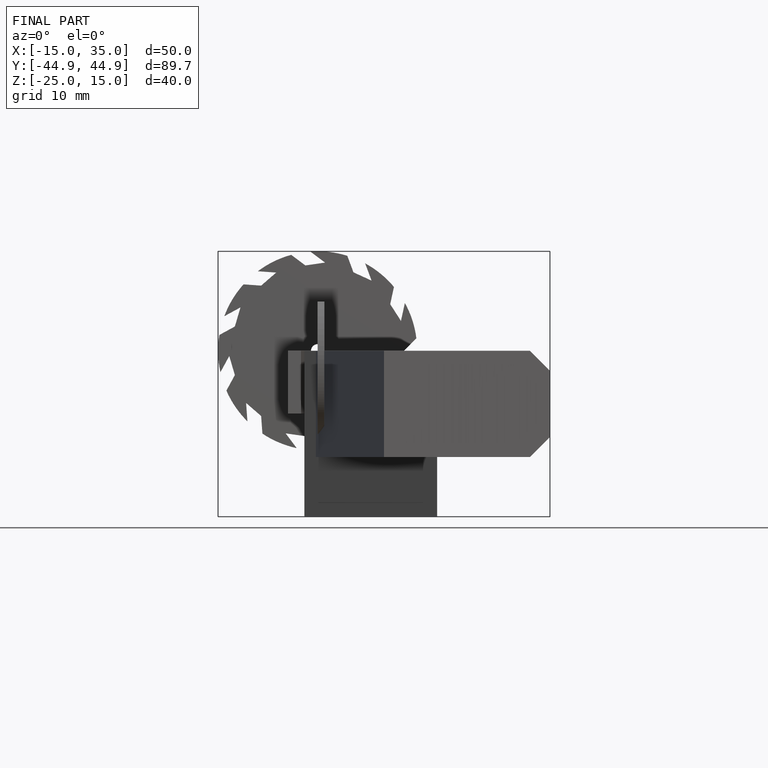
[diagram: finished part — front view with bounding-box wireframe]
